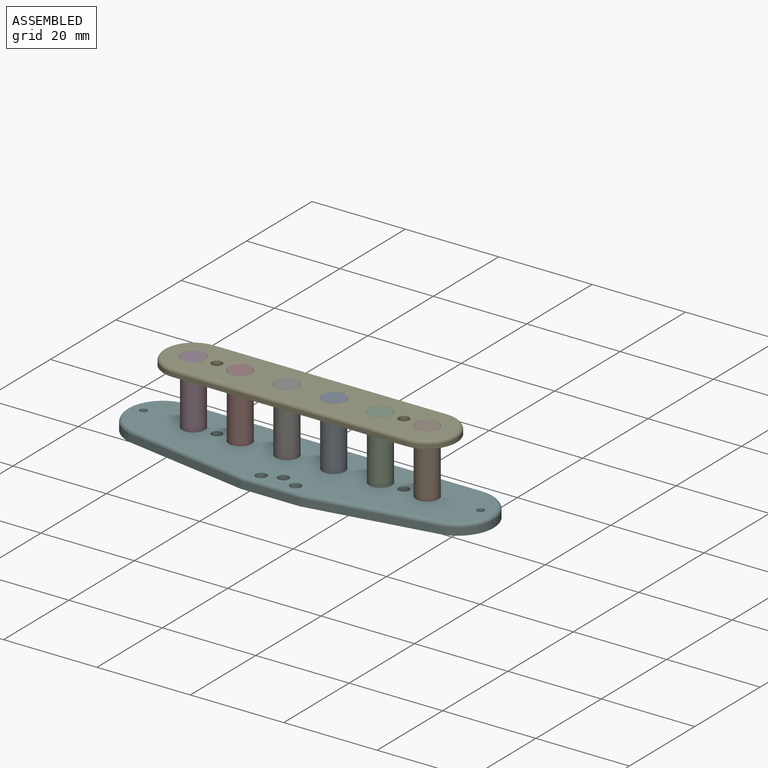
[diagram: assembled view]
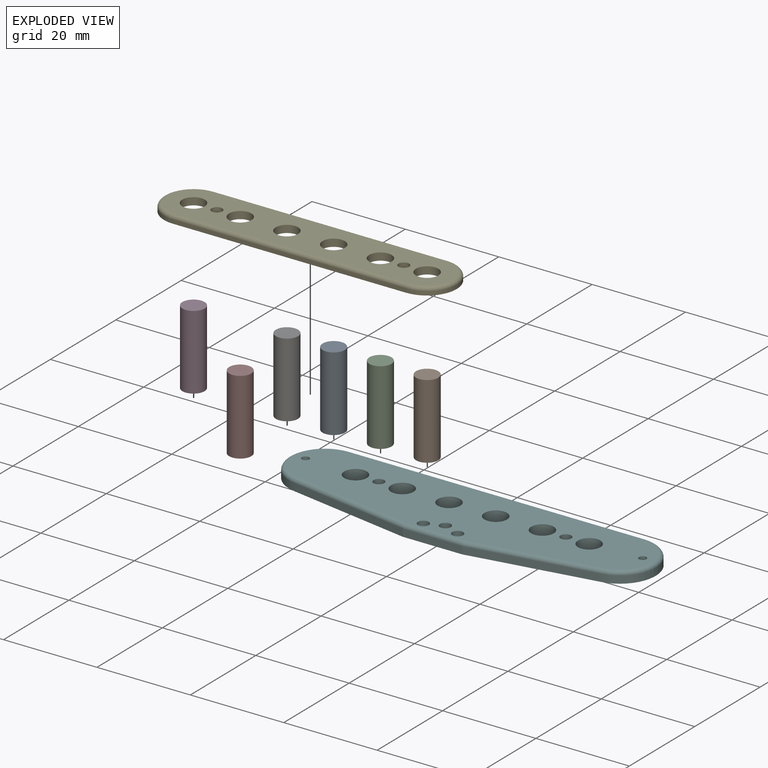
[diagram: exploded view]
GUIDED TOUR — MATED ASSEMBLY (Onshape document 0fcf04f7a3db005e10c4e92a, AutoMate assembly 0fcf04f7a3db005e10c4e92a_23bacdeb026e61476bdaf18c_b0c6037550d2522c84f39eee_default)

This assembly has 8 components, labeled P0..P7 below (a component is one placed occurrence of a part; the same part can appear more than once), held together by 8 mates. A mate is a constraint between two components; its type names the relative motion it leaves free:
  CYLINDRICAL — leaves both rotation about and translation along the listed axis free,
  FASTENED — locks the two components together rigidly (no relative motion).
Axis/direction vectors are unit vectors and 'through' points are millimeter coordinates, both in the assembly's world frame.

MATES
  1. FASTENED "Fastened 6": P5 <-> P1, direction (0.000, 0.000, -1.000) through (11.11, 5.13, -9.92) mm
  2. FASTENED "Fastened 5": P5 <-> P2, direction (0.000, 0.000, -1.000) through (1.10, 5.13, -9.92) mm
  3. FASTENED "Fastened 1": P5 <-> P3, direction (0.000, 0.000, -1.000) through (-38.93, 5.13, -9.92) mm
  4. FASTENED "Fastened 7": P1 <-> P4, direction (0.000, 0.000, -1.000) through (11.11, 5.13, 6.08) mm
  5. FASTENED "Fastened 3": P5 <-> P6, direction (0.000, 0.000, -1.000) through (-18.91, 5.13, -9.92) mm
  6. FASTENED "Fastened 4": P5 <-> P0, direction (0.000, 0.000, -1.000) through (-8.91, 5.13, -9.92) mm
  7. CYLINDRICAL "Cylindrical 1": P3 <-> P4, axis (0.000, 0.000, -1.000) through (-38.93, 5.13, -1.92) mm
  8. FASTENED "Fastened 2": P5 <-> P7, direction (0.000, 0.000, -1.000) through (-28.92, 5.13, -9.92) mm

ASSEMBLY ORDER
  1. P7 — the base component [order verified]
  2. P6 [order verified]
  3. P3 [order verified]
  4. P0 [order verified]
  5. P2 [order verified]
  6. P1 [order verified]
  7. P5 [order verified]
  8. P4 [order verified]
Order-tag legend:
  [order verified] — this step's position reverses a verified removal order: the component was checked to insert without passing through the ones already placed.

Of the 8 components, 8 carry the full construction recipe — the FeatureScript program that regenerates the part's solid from scratch; the rest are supplied as boundary geometry only.
Each toured component is shown spotlighted twice — in the assembled view, then in the exploded view, where a leader line traces a displaced component back to its assembled socket (saturated green if recipe-attached, orange if geometry-only; every other component desaturated gray) — followed by its recipe or geometry summary and the mates that hold it.
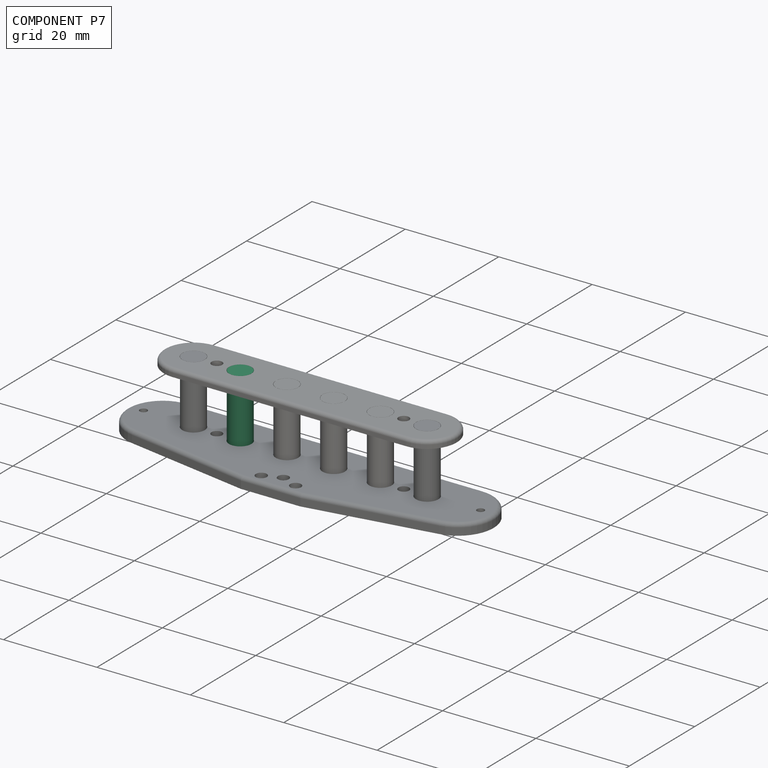
[diagram: component P7 — assembled]
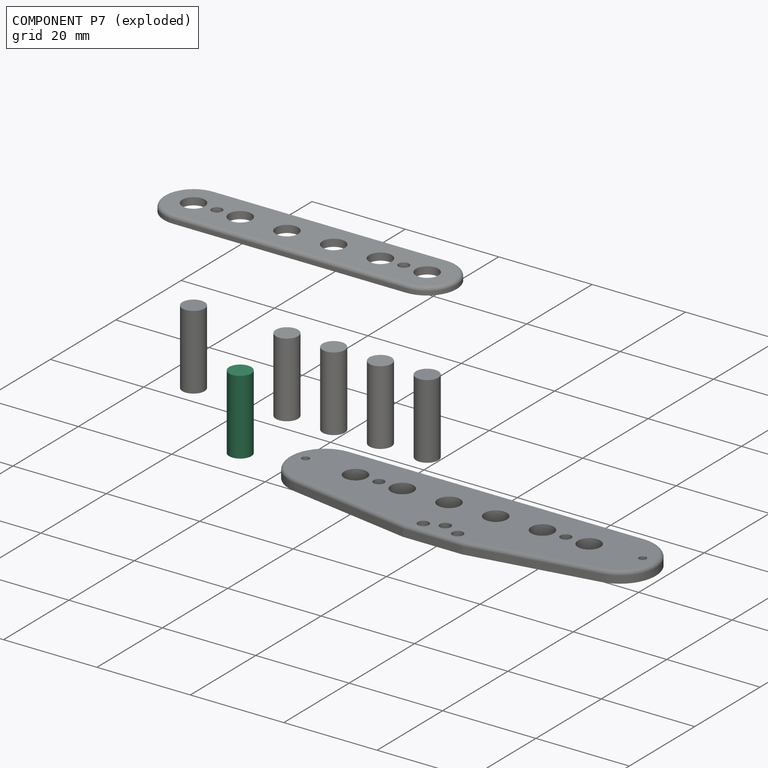
[diagram: component P7 — exploded]
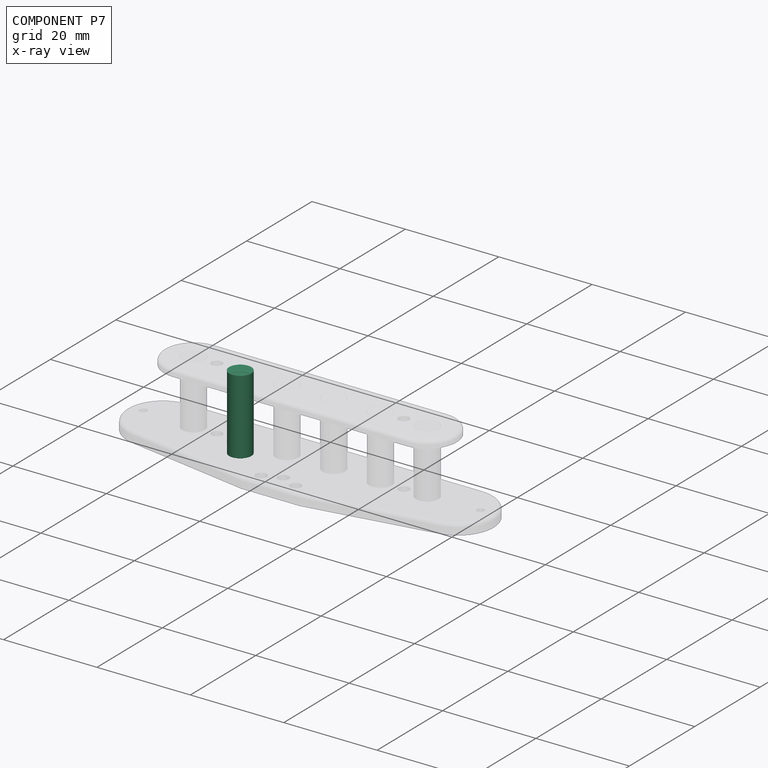
[diagram: component P7 — x-ray view]
COMPONENT P7 — same part as P0 (CADFS 00274797); its construction recipe is shown at P0.
Held by: FASTENED mate "Fastened 2" to P5.
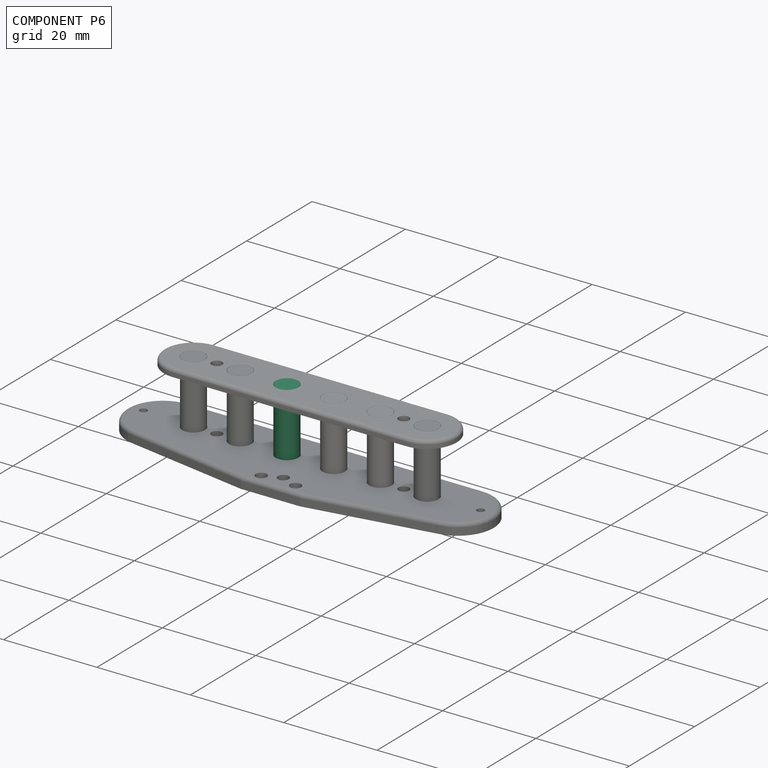
[diagram: component P6 — assembled]
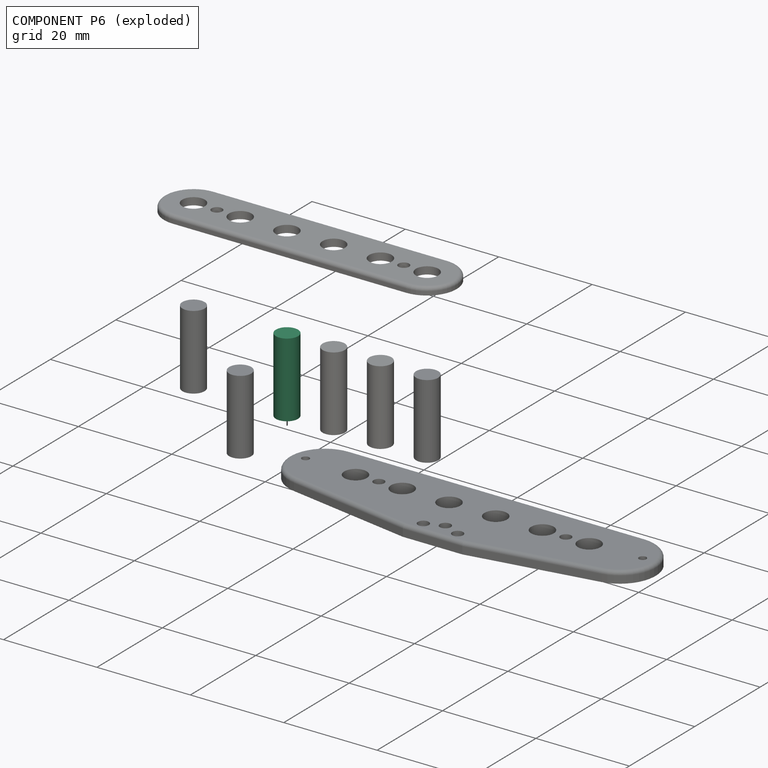
[diagram: component P6 — exploded]
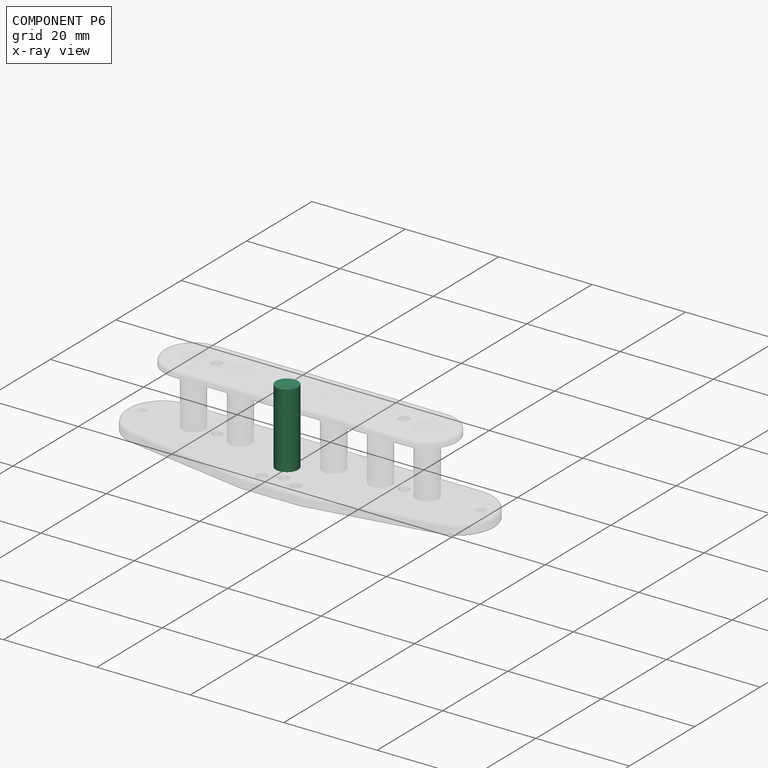
[diagram: component P6 — x-ray view]
COMPONENT P6 — same part as P0 (CADFS 00274797); its construction recipe is shown at P0.
Held by: FASTENED mate "Fastened 3" to P5.
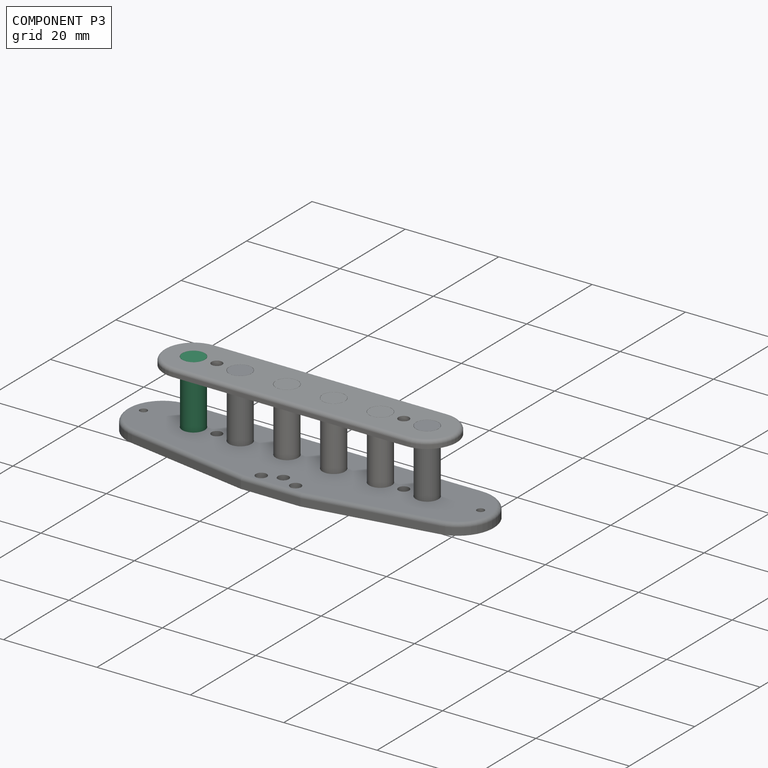
[diagram: component P3 — assembled]
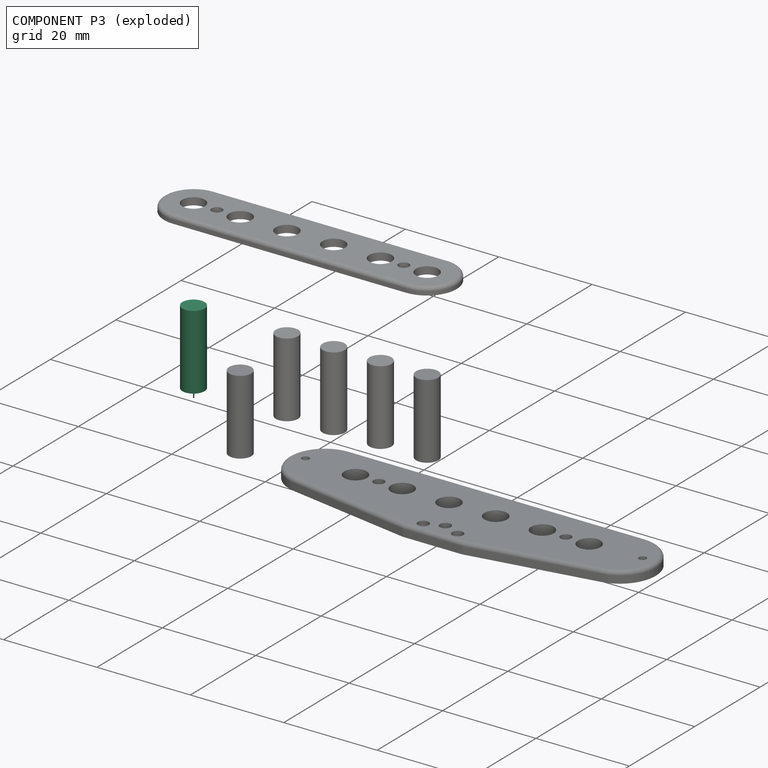
[diagram: component P3 — exploded]
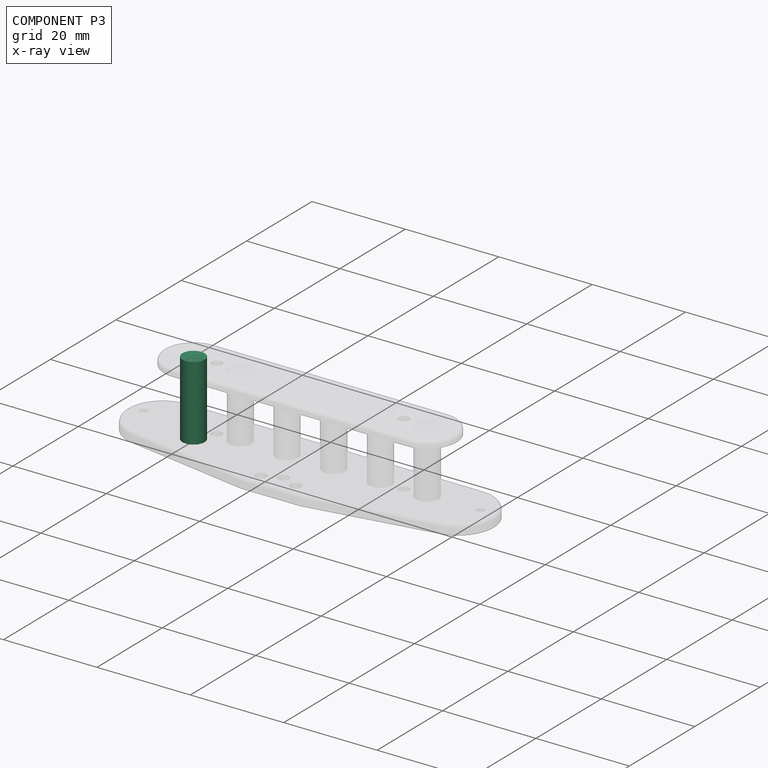
[diagram: component P3 — x-ray view]
COMPONENT P3 — same part as P0 (CADFS 00274797); its construction recipe is shown at P0.
Held by: FASTENED mate "Fastened 1" to P5; CYLINDRICAL mate "Cylindrical 1" to P4.
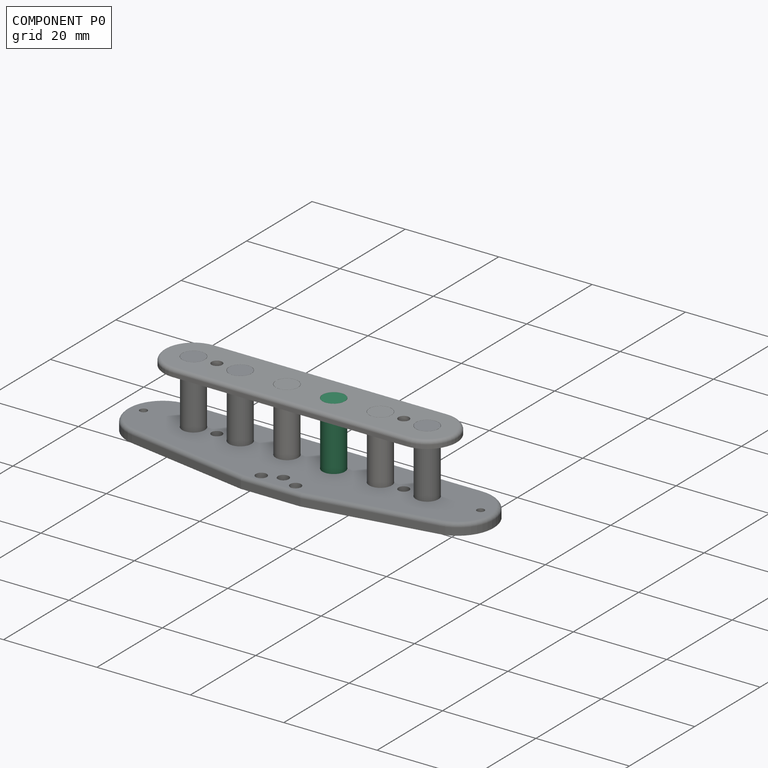
[diagram: component P0 — assembled]
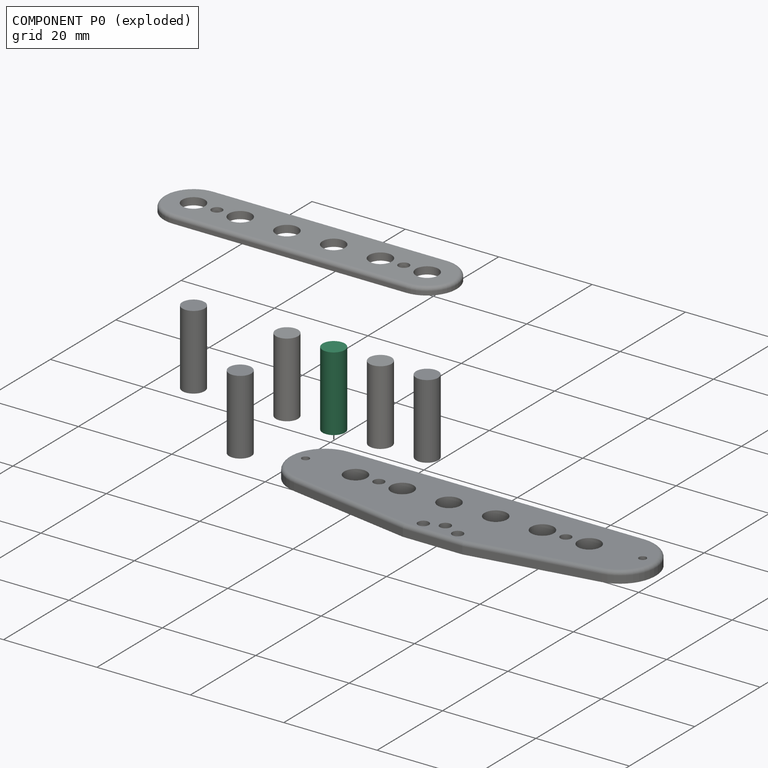
[diagram: component P0 — exploded]
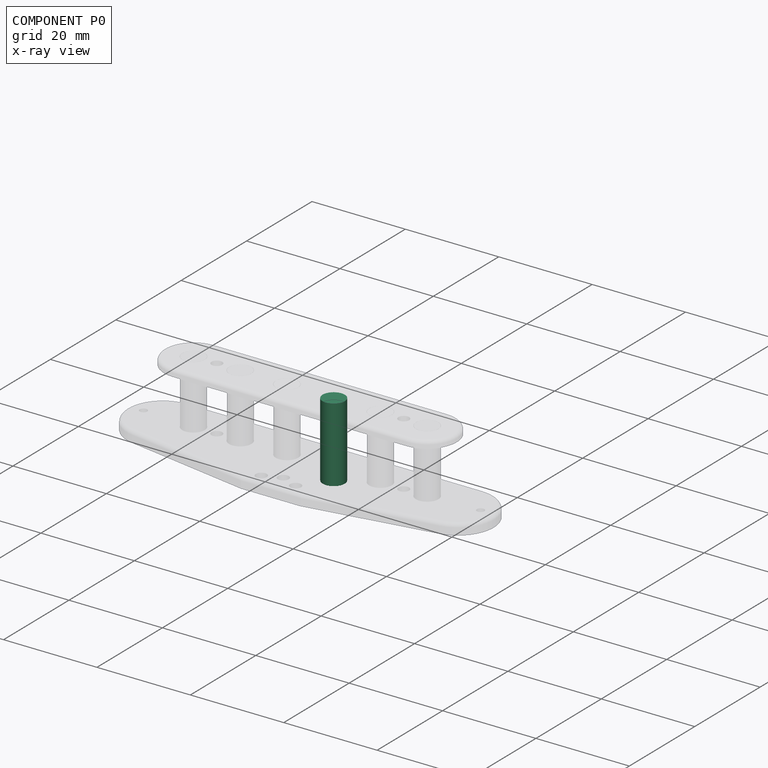
[diagram: component P0 — x-ray view]
COMPONENT P0 — recipe-attached (CADFS 00274797, mesh-verified: the recipe's output STEP matches this component's geometry to below the mesh-comparison resolution (tessellation chordal tolerance ~0.026 mm)).
Held by: FASTENED mate "Fastened 4" to P5.
Construction recipe (FeatureScript — the CAD program that rebuilds this solid; sketch coordinates are in the units given by the * unit suffixes, e.g. mm):

FeatureScript 1511;
import(path : "onshape/std/geometry.fs", version : "1511.0");
import(path : "onshape/std/common.fs", version : "1511.0");
const mm = millimeter;
const VERTEX = EntityType.VERTEX;
const EDGE = EntityType.EDGE;
const FACE = EntityType.FACE;
const BODY = EntityType.BODY;
function v(x, y){return vector(x, y);}
function OD(order){return orderDisambiguation(order);}
function OSD(set){return originalSetDisambiguation(set);}
function TD(topology){return topologyDisambiguation(topology);}
function TDD(query){return trueDependencyDisambiguation(query);}
function sQuery(a, b, c) {return sketchEntityQuery(a, b, c);}

annotation { "Feature Type Name" : "Feature", "Feature Type Description" : "" }
export const myFeature = defineFeature(function(context is Context, id is Id, definition is map)
    precondition{}
    {
        {
            var Q0;
            Q0=qCreatedBy(makeId("Top.planeOp"),FACE);
            var sketch = newSketch(context, id + "F0", { "sketchPlane" : qUnion([Q0])});
            skCircle(sketch, "E0", {"center": v(0, 0) * mm, "radius": 2.37 * mm});
            skSolve(sketch);
        }
        {
            var Q0;
            Q0 = qSketchRegion(id + "F0", true);
            extrude(context, id + "F1", {"entities" : qUnion([Q0]), "depth" : 16 * mm});
        }
    });
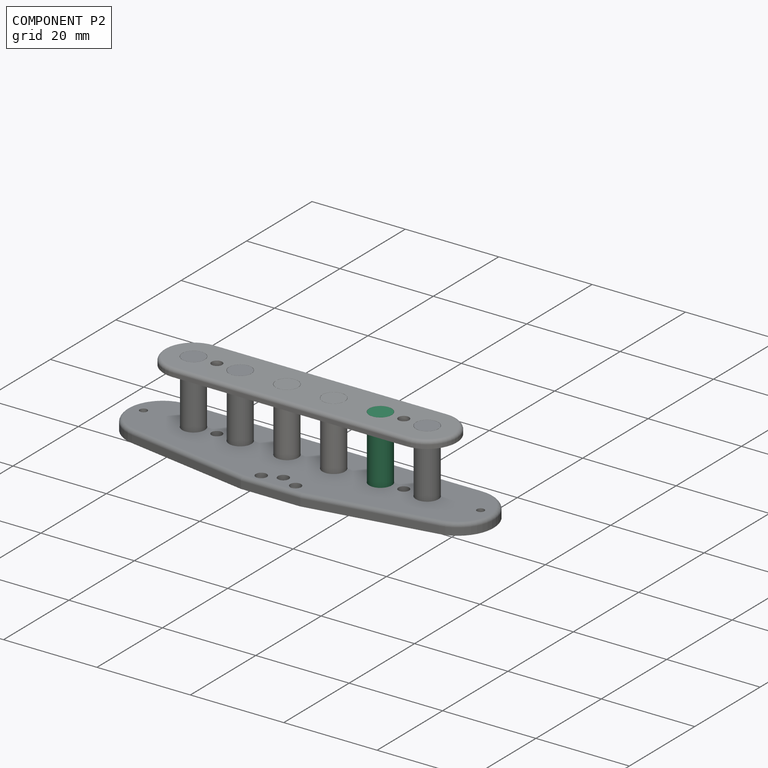
[diagram: component P2 — assembled]
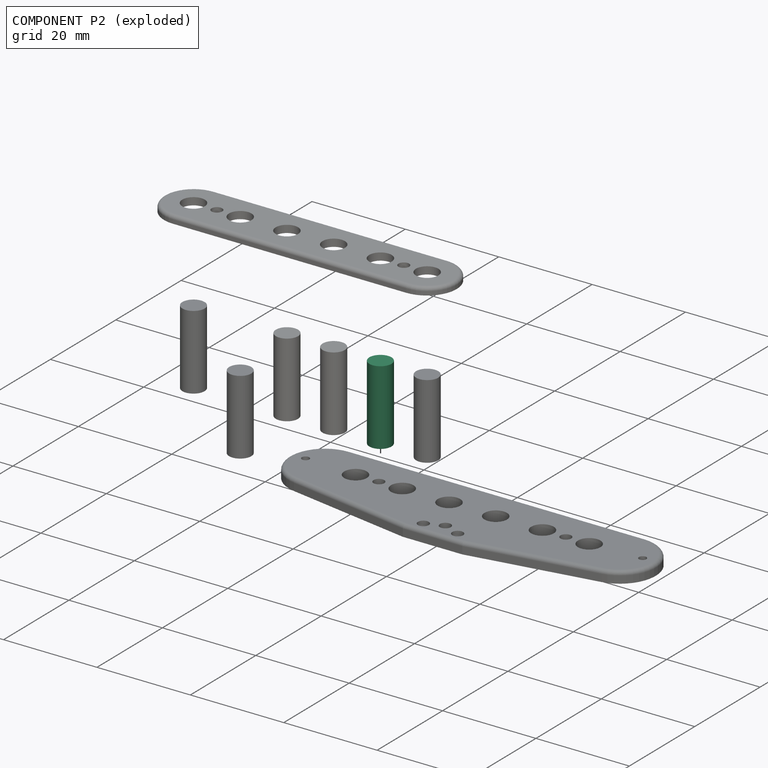
[diagram: component P2 — exploded]
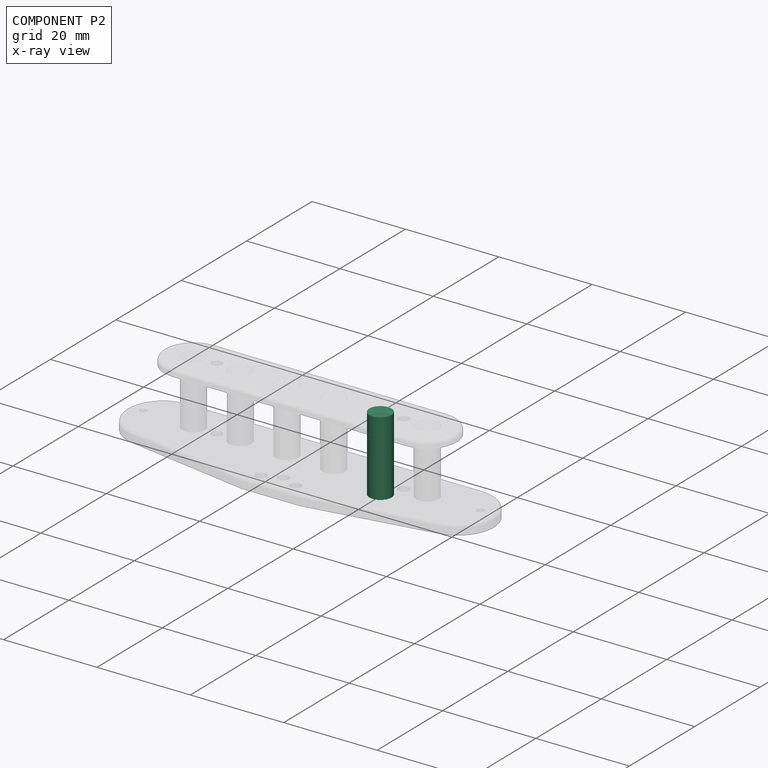
[diagram: component P2 — x-ray view]
COMPONENT P2 — same part as P0 (CADFS 00274797); its construction recipe is shown at P0.
Held by: FASTENED mate "Fastened 5" to P5.
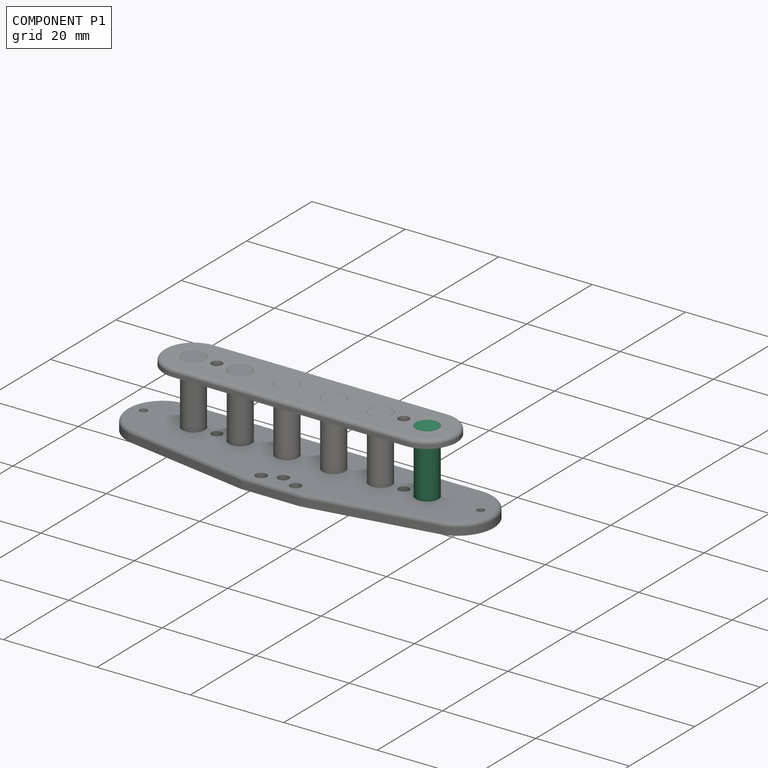
[diagram: component P1 — assembled]
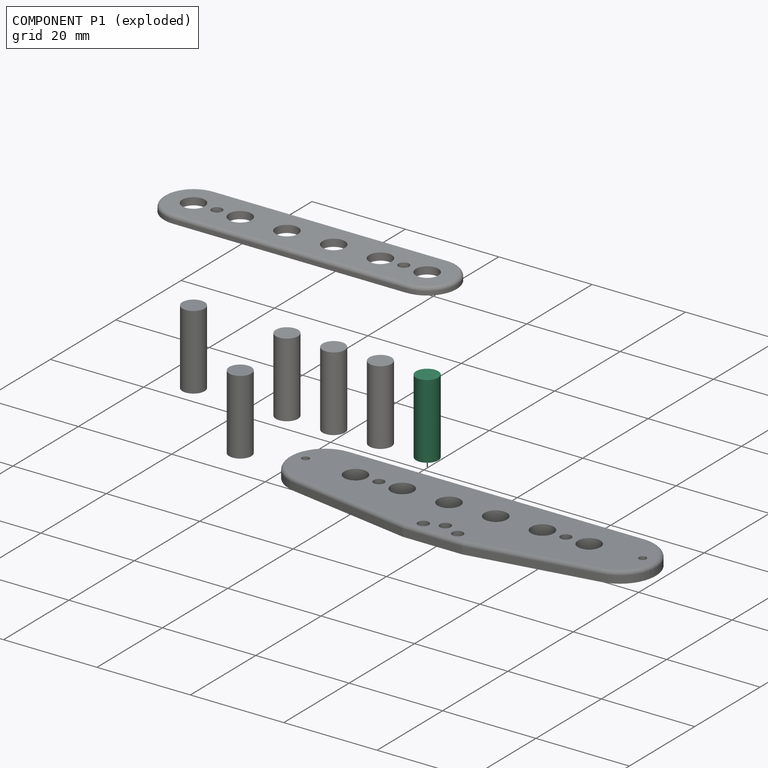
[diagram: component P1 — exploded]
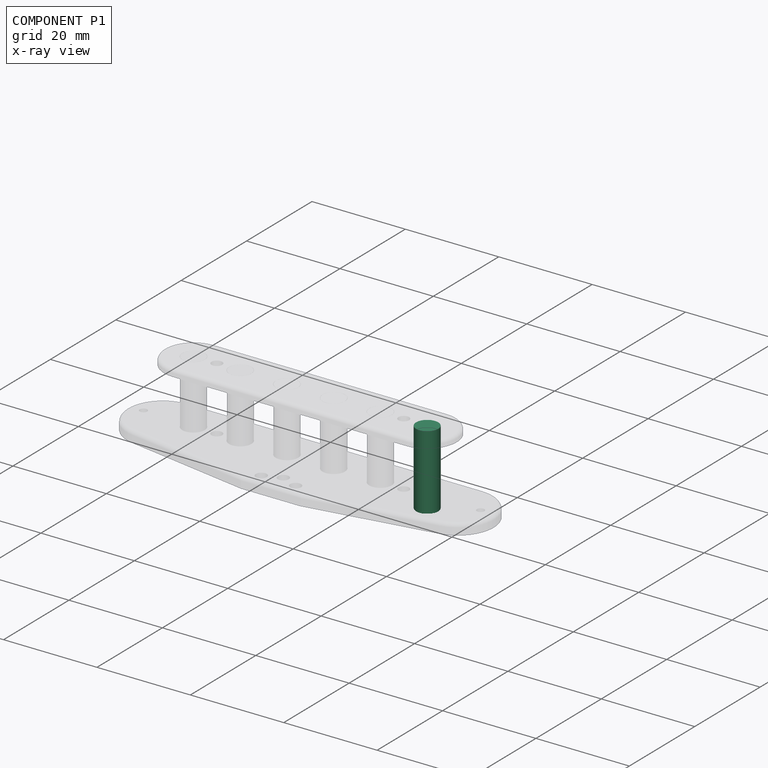
[diagram: component P1 — x-ray view]
COMPONENT P1 — same part as P0 (CADFS 00274797); its construction recipe is shown at P0.
Held by: FASTENED mate "Fastened 6" to P5; FASTENED mate "Fastened 7" to P4.
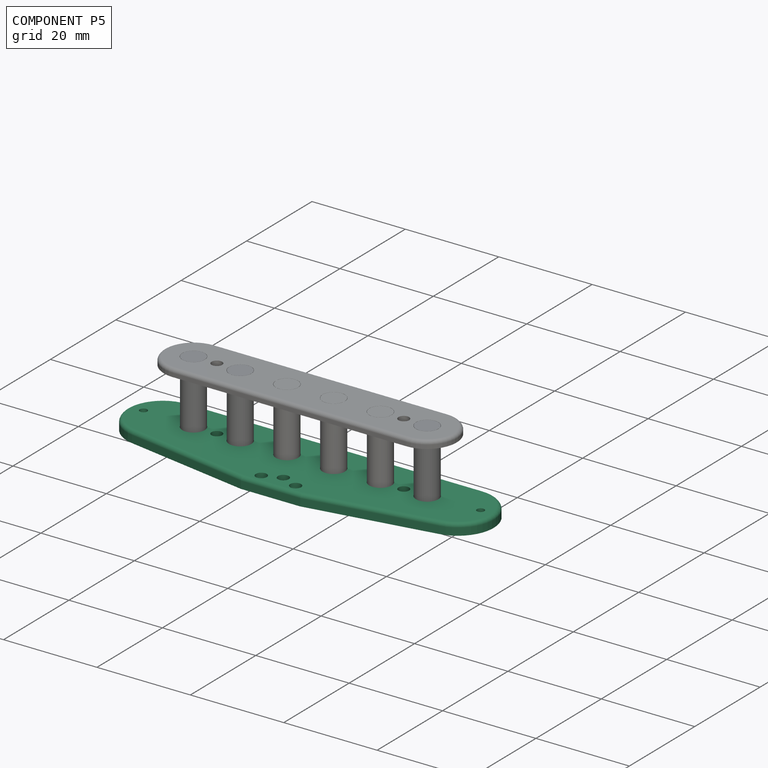
[diagram: component P5 — assembled]
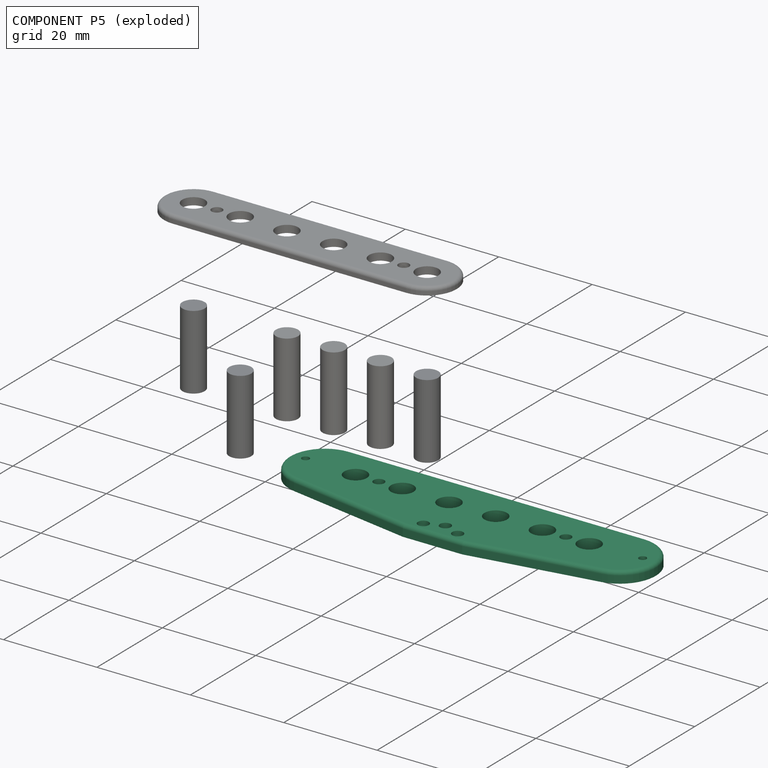
[diagram: component P5 — exploded]
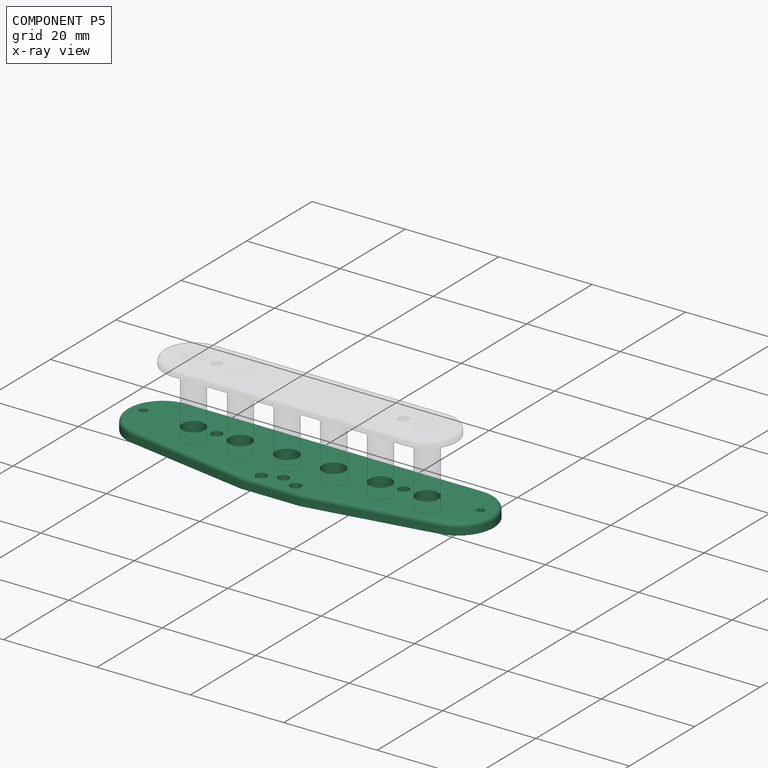
[diagram: component P5 — x-ray view]
COMPONENT P5 — recipe-attached (CADFS 00274796, mesh-verified: the recipe's output STEP matches this component's geometry to below the mesh-comparison resolution (tessellation chordal tolerance ~0.122 mm)).
Held by: FASTENED mate "Fastened 6" to P1; FASTENED mate "Fastened 5" to P2; FASTENED mate "Fastened 1" to P3; FASTENED mate "Fastened 3" to P6; FASTENED mate "Fastened 4" to P0; FASTENED mate "Fastened 2" to P7.
Construction recipe (FeatureScript — the CAD program that rebuilds this solid; sketch coordinates are in the units given by the * unit suffixes, e.g. mm):

FeatureScript 1511;
import(path : "onshape/std/geometry.fs", version : "1511.0");
import(path : "onshape/std/common.fs", version : "1511.0");
const mm = millimeter;
const VERTEX = EntityType.VERTEX;
const EDGE = EntityType.EDGE;
const FACE = EntityType.FACE;
const BODY = EntityType.BODY;
function v(x, y){return vector(x, y);}
function OD(order){return orderDisambiguation(order);}
function OSD(set){return originalSetDisambiguation(set);}
function TD(topology){return topologyDisambiguation(topology);}
function TDD(query){return trueDependencyDisambiguation(query);}
function sQuery(a, b, c) {return sketchEntityQuery(a, b, c);}

annotation { "Feature Type Name" : "Feature", "Feature Type Description" : "" }
export const myFeature = defineFeature(function(context is Context, id is Id, definition is map)
    precondition{}
    {
        {
            var Q0;
            Q0=qCreatedBy(makeId("Top.planeOp"),FACE);
            var sketch = newSketch(context, id + "F0", { "sketchPlane" : qUnion([Q0])});
            skCircle(sketch, "E0", {"center": v(5, 0) * mm, "radius": 2.41 * mm});
            skCircle(sketch, "E1.1.0.0", {"center": v(15.01, 0) * mm, "radius": 2.41 * mm});
            skCircle(sketch, "E1.2.0.0", {"center": v(25.02, 0) * mm, "radius": 2.41 * mm});
            skLineSegment(sketch, "E1.direction1", {"start": v(5, 0) * mm, "end": v(15.01, 0) * mm, "construction": true});
            skLineSegment(sketch, "E2", {"start": v(0, 7.67) * mm, "end": v(31.6, 7.67) * mm});
            skArc(sketch, "E3", {"start": v(32.9, -7.56) * mm, "mid": v(39.24, 0.66) * mm, "end": v(31.6, 7.67) * mm});
            skPoint(sketch, "E4", {"position": v(39.27, 0) * mm});
            skLineSegment(sketch, "E5", {"start": v(6.35, -12.17) * mm, "end": v(32.9, -7.56) * mm});
            skCircle(sketch, "E6", {"center": v(36.1, 0.53) * mm, "radius": 0.8 * mm});
            skLineSegment(sketch, "E7.MirrorCS", {"start": v(0, 7.67) * mm, "end": v(-31.6, 7.67) * mm});
            skArc(sketch, "E8.MirrorCS", {"start": v(-32.9, -7.56) * mm, "mid": v(-39.24, 0.66) * mm, "end": v(-31.6, 7.67) * mm});
            skLineSegment(sketch, "E9.MirrorCS", {"start": v(-6.35, -12.17) * mm, "end": v(-32.9, -7.56) * mm});
            skCircle(sketch, "E10.MirrorC", {"center": v(-36.1, 0.53) * mm, "radius": 0.8 * mm});
            skLineSegment(sketch, "E11", {"start": v(-6.35, -12.17) * mm, "end": v(6.35, -12.17) * mm});
            skCircle(sketch, "E12.MirrorC", {"center": v(-5, 0) * mm, "radius": 2.41 * mm});
            skCircle(sketch, "E13.MirrorC", {"center": v(-15.01, 0) * mm, "radius": 2.41 * mm});
            skCircle(sketch, "E14.MirrorC", {"center": v(-25.02, 0) * mm, "radius": 2.41 * mm});
            skCircle(sketch, "E15", {"center": v(0, -8.26) * mm, "radius": 1.17 * mm});
            skCircle(sketch, "E16", {"center": v(3.67, -9.75) * mm, "radius": 1.17 * mm});
            skCircle(sketch, "E17.MirrorC", {"center": v(-3.67, -9.75) * mm, "radius": 1.17 * mm});
            skCircle(sketch, "E18", {"center": v(20.02, 0) * mm, "radius": 1.14 * mm});
            skCircle(sketch, "E19.MirrorC", {"center": v(-20.02, 0) * mm, "radius": 1.14 * mm});
            skSolve(sketch);
        }
        {
            var Q0;
            Q0 = qSketchRegion(id + "F0", true);
            extrude(context, id + "F1", {"entities" : qUnion([Q0]), "depth" : 2.38 * mm});
        }
        {
            var Q0;
            Q0=makeQuery(id+"F1.opExtrude","CAP_EDGE",EDGE,{"disambiguationData":[OSD([sQuery(id+"F0.wireOp",EDGE,"E8.MirrorCS")])],"isStart":false});
            var Q1;
            Q1=makeQuery(id+"F1.opExtrude","CAP_EDGE",EDGE,{"disambiguationData":[OSD([sQuery(id+"F0.wireOp",EDGE,"E9.MirrorCS")])],"isStart":false});
            var Q2;
            Q2=makeQuery(id+"F1.opExtrude","CAP_EDGE",EDGE,{"disambiguationData":[OSD([sQuery(id+"F0.wireOp",EDGE,"E11")])],"isStart":false});
            fillet(context, id + "F2", {"entities" : qUnion([Q0, Q1, Q2]), "radius" : 0.81 * mm, "tangentPropagation" : true, "allowEdgeOverflow" : false});
        }
    });
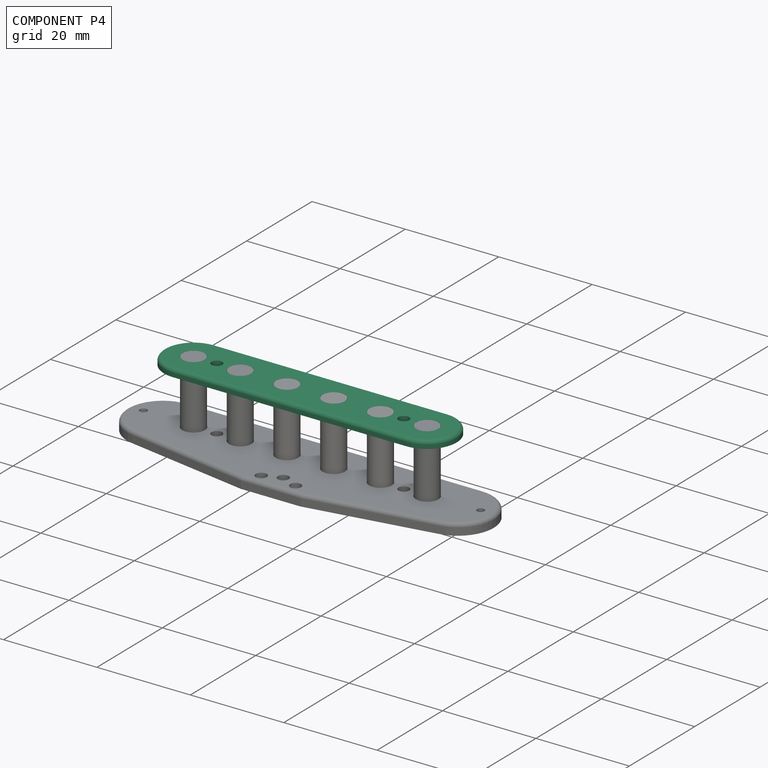
[diagram: component P4 — assembled]
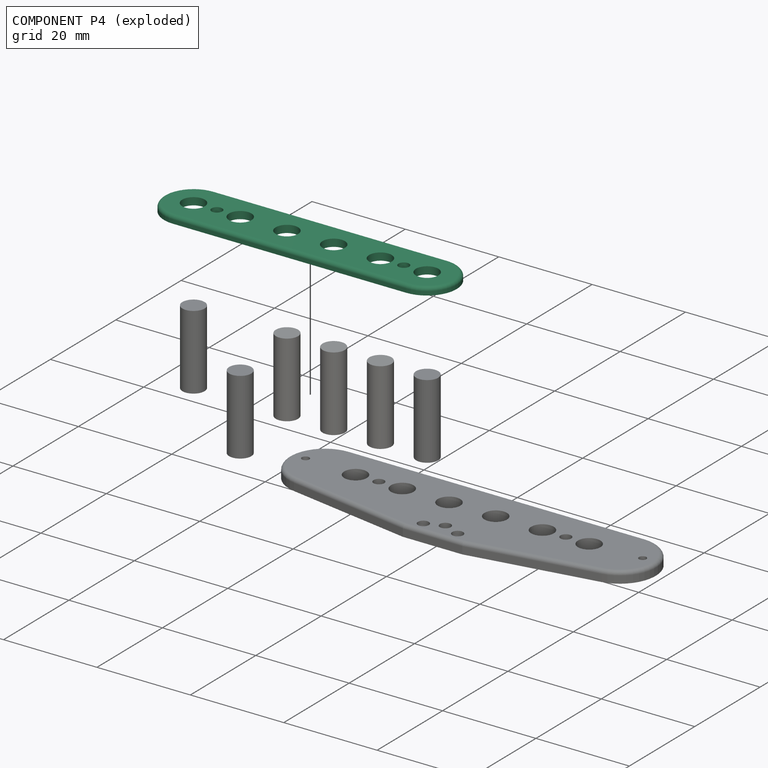
[diagram: component P4 — exploded]
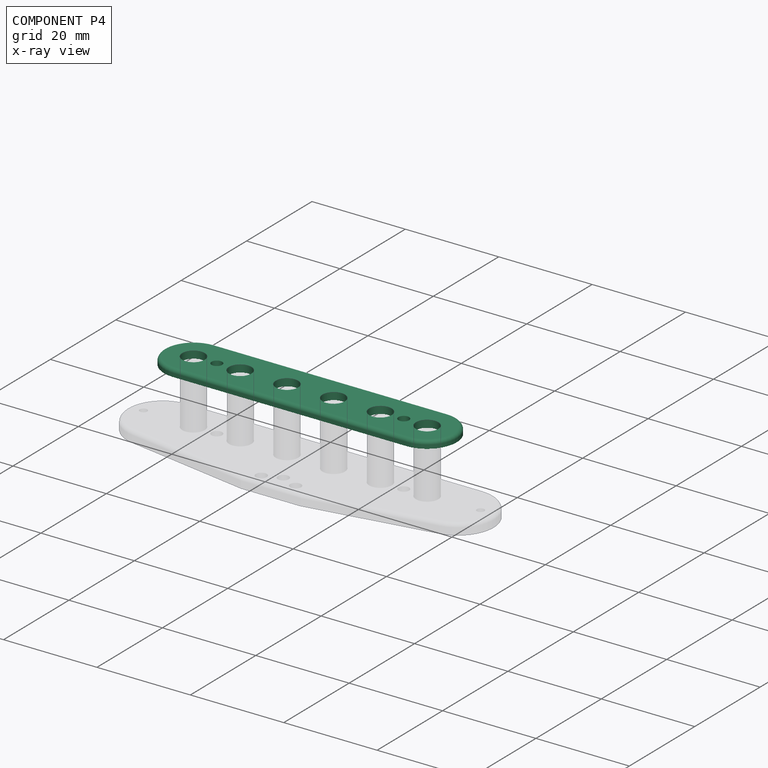
[diagram: component P4 — x-ray view]
COMPONENT P4 — recipe-attached (CADFS 00274798, mesh-verified: the recipe's output STEP matches this component's geometry to below the mesh-comparison resolution (tessellation chordal tolerance ~0.0959 mm)).
Held by: FASTENED mate "Fastened 7" to P1; CYLINDRICAL mate "Cylindrical 1" to P3.
Construction recipe (FeatureScript — the CAD program that rebuilds this solid; sketch coordinates are in the units given by the * unit suffixes, e.g. mm):

FeatureScript 1511;
import(path : "onshape/std/geometry.fs", version : "1511.0");
import(path : "onshape/std/common.fs", version : "1511.0");
const mm = millimeter;
const VERTEX = EntityType.VERTEX;
const EDGE = EntityType.EDGE;
const FACE = EntityType.FACE;
const BODY = EntityType.BODY;
function v(x, y){return vector(x, y);}
function OD(order){return orderDisambiguation(order);}
function OSD(set){return originalSetDisambiguation(set);}
function TD(topology){return topologyDisambiguation(topology);}
function TDD(query){return trueDependencyDisambiguation(query);}
function sQuery(a, b, c) {return sketchEntityQuery(a, b, c);}

annotation { "Feature Type Name" : "Feature", "Feature Type Description" : "" }
export const myFeature = defineFeature(function(context is Context, id is Id, definition is map)
    precondition{}
    {
        {
            var Q0;
            Q0=qCreatedBy(makeId("Top.planeOp"),FACE);
            var sketch = newSketch(context, id + "F0", { "sketchPlane" : qUnion([Q0])});
            skLineSegment(sketch, "E0", {"start": v(0, 0) * mm, "end": v(31.34, 0) * mm, "construction": true});
            skLineSegment(sketch, "E1.0", {"start": v(0, 6.35) * mm, "end": v(25, 6.35) * mm});
            skCircle(sketch, "E2", {"center": v(5, 0) * mm, "radius": 2.41 * mm});
            skCircle(sketch, "E3.1.0.0", {"center": v(15.01, 0) * mm, "radius": 2.41 * mm});
            skCircle(sketch, "E3.2.0.0", {"center": v(25.02, 0) * mm, "radius": 2.41 * mm});
            skLineSegment(sketch, "E3.direction1", {"start": v(5, 0) * mm, "end": v(15.01, 0) * mm, "construction": true});
            skLineSegment(sketch, "E4.MirrorCS", {"start": v(0, -6.35) * mm, "end": v(25, -6.35) * mm});
            skArc(sketch, "E5", {"start": v(25, -6.35) * mm, "mid": v(31.34, 0) * mm, "end": v(25, 6.35) * mm});
            skLineSegment(sketch, "E6.MirrorCS", {"start": v(0, 6.35) * mm, "end": v(-25, 6.35) * mm});
            skArc(sketch, "E7.MirrorCS", {"start": v(-25, -6.35) * mm, "mid": v(-31.34, 0) * mm, "end": v(-25, 6.35) * mm});
            skCircle(sketch, "E8.MirrorC", {"center": v(-5, 0) * mm, "radius": 2.41 * mm});
            skCircle(sketch, "E9.MirrorC", {"center": v(-25.02, 0) * mm, "radius": 2.41 * mm});
            skLineSegment(sketch, "E10.MirrorCS", {"start": v(-5, 0) * mm, "end": v(-15.01, 0) * mm, "construction": true});
            skLineSegment(sketch, "E11.MirrorCS", {"start": v(0, 0) * mm, "end": v(-31.34, 0) * mm, "construction": true});
            skCircle(sketch, "E12.MirrorC", {"center": v(-15.01, 0) * mm, "radius": 2.41 * mm});
            skLineSegment(sketch, "E13.MirrorCS", {"start": v(0, -6.35) * mm, "end": v(-25, -6.35) * mm});
            skCircle(sketch, "E14", {"center": v(20.02, 0) * mm, "radius": 1.14 * mm});
            skCircle(sketch, "E15.MirrorC", {"center": v(-20.02, 0) * mm, "radius": 1.14 * mm});
            skSolve(sketch);
        }
        {
            var Q0;
            Q0 = qSketchRegion(id + "F0", true);
            extrude(context, id + "F1", {"entities" : qUnion([Q0]), "depth" : 1.59 * mm});
        }
        {
            var Q0;
            Q0=makeQuery(id+"F1.opExtrude","CAP_EDGE",EDGE,{"disambiguationData":[OSD([sQuery(id+"F0.wireOp",EDGE,"E7.MirrorCS")])],"isStart":false});
            fillet(context, id + "F2", {"entities" : qUnion([Q0]), "radius" : 0.76 * mm, "tangentPropagation" : true, "allowEdgeOverflow" : false});
        }
    });
PROVENANCE & LICENSES
Assembly (occurrences, transforms, mates, per-part STEP geometry): AutoMate dataset, Zenodo record 7776208, CC0.
Construction recipes: CADFS (HuggingFace VladPyatov/CADFS, CC-BY-4.0, layered over the ABC dataset), FeatureScript reconstruction programs keyed by ABC model id.
Join: ABC meta listings map ABC model id -> Onshape documentId; within a shared document, parts are matched by geometric signature (bounding-box dims + volume at 0.1% relative tolerance, exact B-rep face/solid counts).
Verification: 8 of this assembly's 8 components carry a recipe attachment, and every attachment is mesh-verified: the CADFS STEP and the AutoMate member STEP were compared as meshes in their shared local frame (symmetric sampled-point-to-mesh distance); worst across the 8 attachments: below the mesh-comparison resolution (tessellation chordal tolerance ~0.122 mm) on a 81 mm part.
Renders: orthographic iso camera (az 35 / el 25); the floor grid conveys scale (grid pitch printed in each image; no ruler). In the exploded view each component is displaced by its stored offset vector: the offsets alone carry the explosion direction (mate normal/axis signs are not orientation cues and do not encode it), and separation distances are assigned per mate-chain, not proportionally to assembly-order depth.
